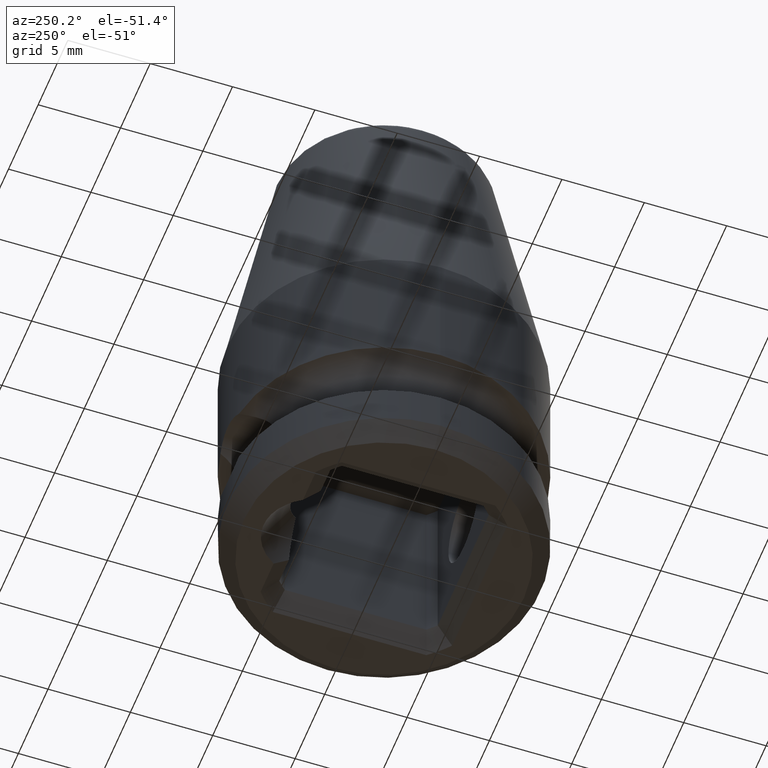
[diagram: clean part render]
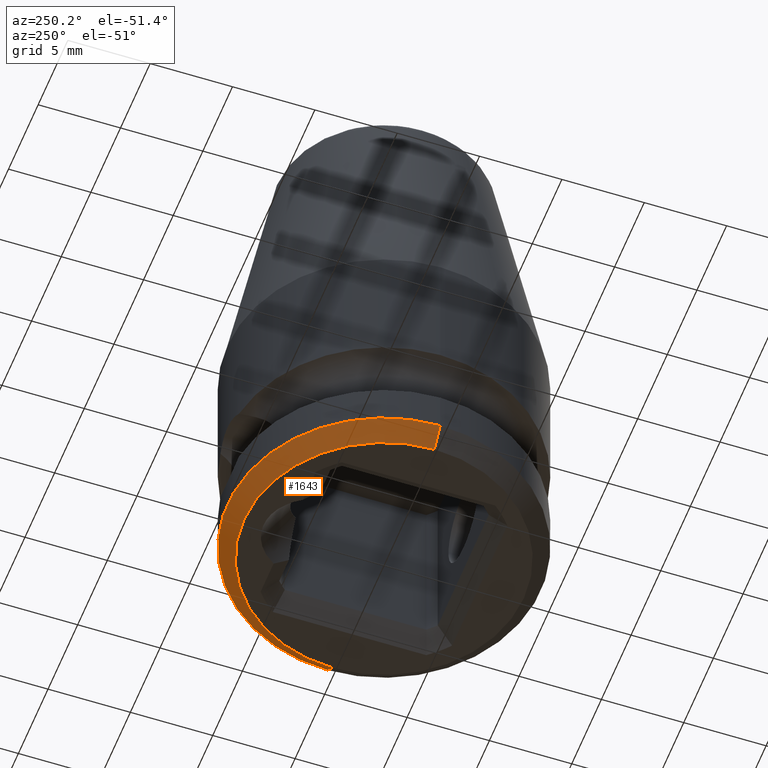
[diagram: same view with one face highlighted and labeled with its STEP entity id]
A machine part, auxiliary view. The second image highlights one B-rep face of the part: STEP entity #1643.
In plain terms, the highlighted conical surface has half-angle 45 deg.
Its self-contained STEP definition (entity closure, byte-faithful):
#443=CARTESIAN_POINT('',(0.E0,0.E0,1.E0));
#444=DIRECTION('',(0.E0,0.E0,-1.E0));
#445=DIRECTION('',(-1.E0,0.E0,0.E0));
#446=AXIS2_PLACEMENT_3D('',#443,#444,#445);
#567=DIRECTION('',(-7.071067811865E-1,-6.639848375795E-10,7.071067811865E-1));
#568=VECTOR('',#567,1.414213562378E0);
#569=CARTESIAN_POINT('',(-8.499999999977E0,5.804831682860E-9,
-2.290197661144E-11));
#570=LINE('',#569,#568);
#616=CARTESIAN_POINT('',(0.E0,0.E0,0.E0));
#617=DIRECTION('',(0.E0,0.E0,-1.E0));
#618=DIRECTION('',(-1.E0,0.E0,0.E0));
#619=AXIS2_PLACEMENT_3D('',#616,#617,#618);
#925=DIRECTION('',(7.071067811865E-1,6.639837968287E-10,7.071067811865E-1));
#926=VECTOR('',#925,1.414213562378E0);
#927=CARTESIAN_POINT('',(8.499999999977E0,-5.804829776206E-9,
-2.290079237355E-11));
#928=LINE('',#927,#926);
#981=CARTESIAN_POINT('',(8.5E0,0.E0,0.E0));
#982=CARTESIAN_POINT('',(-8.5E0,0.E0,0.E0));
#983=VERTEX_POINT('',#981);
#984=VERTEX_POINT('',#982);
#985=CARTESIAN_POINT('',(9.5E0,0.E0,1.E0));
#986=CARTESIAN_POINT('',(-9.5E0,0.E0,1.E0));
#987=VERTEX_POINT('',#985);
#988=VERTEX_POINT('',#986);
#1629=CARTESIAN_POINT('',(0.E0,0.E0,4.999999999669E-1));
#1630=DIRECTION('',(0.E0,0.E0,1.E0));
#1631=DIRECTION('',(0.E0,-1.E0,0.E0));
#1632=AXIS2_PLACEMENT_3D('',#1629,#1630,#1631);
#1633=CONICAL_SURFACE('',#1632,8.999999999967E0,4.5E1);
#1635=ORIENTED_EDGE('',*,*,#1634,.T.);
#1637=ORIENTED_EDGE('',*,*,#1636,.T.);
#1638=ORIENTED_EDGE('',*,*,#1586,.F.);
#1640=ORIENTED_EDGE('',*,*,#1639,.F.);
#1641=EDGE_LOOP('',(#1635,#1637,#1638,#1640));
#1642=FACE_OUTER_BOUND('',#1641,.F.);
#1643=ADVANCED_FACE('',(#1642),#1633,.T.);
#447=CIRCLE('',#446,9.5E0);
#620=CIRCLE('',#619,8.5E0);
#1586=EDGE_CURVE('',#988,#987,#447,.T.);
#1634=EDGE_CURVE('',#984,#983,#620,.T.);
#1636=EDGE_CURVE('',#983,#987,#928,.T.);
#1639=EDGE_CURVE('',#984,#988,#570,.T.);